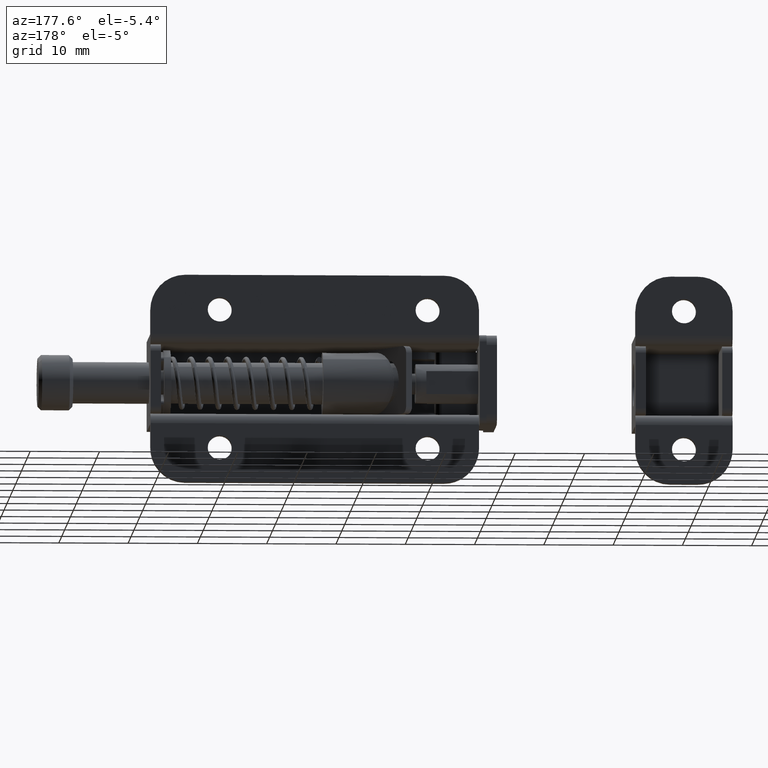
[diagram: clean part render]
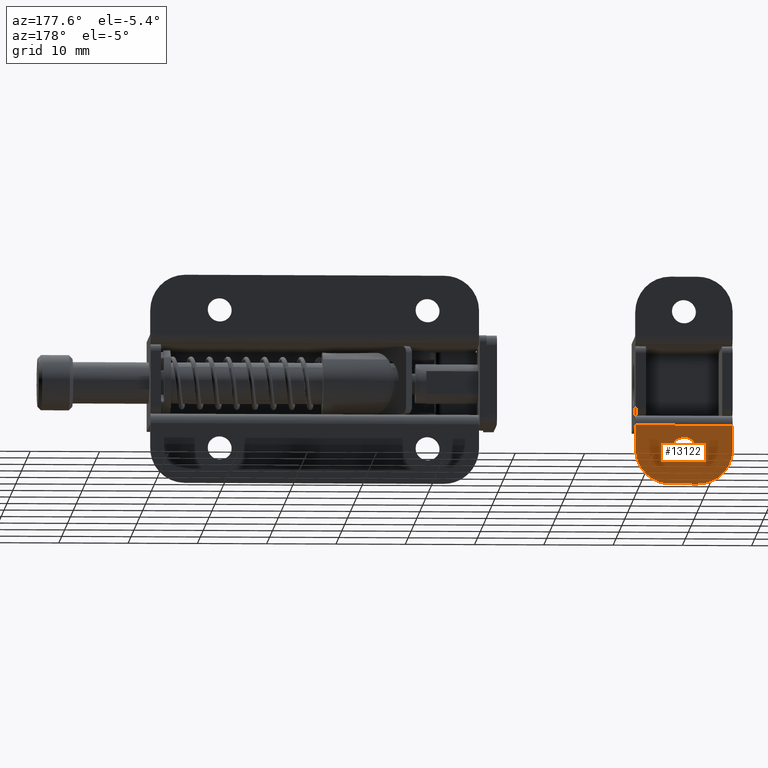
[diagram: same view with one face highlighted and labeled with its STEP entity id]
A machine part, auxiliary view. The second image highlights one B-rep face of the part: STEP entity #13122.
In plain terms, the highlighted face is a freeform B-spline surface patch.
Its self-contained STEP definition (entity closure, byte-faithful):
#11662=CARTESIAN_POINT('',(-5.663777417865256,7.500000000012889,-8.869951189053252));
#11663=VERTEX_POINT('',#11662);
#11664=CARTESIAN_POINT('',(-7.000000000000110,7.500000000000000,-8.250000000000000));
#11665=VERTEX_POINT('',#11664);
#11666=CARTESIAN_POINT('',(-5.663777417865256,7.500000000012889,-8.869951189053252));
#11667=CARTESIAN_POINT('',(-5.816989337607192,7.500000000011397,-8.688333685461457));
#11668=CARTESIAN_POINT('',(-6.135286674541159,7.500000000008390,-8.439280064663162));
#11669=CARTESIAN_POINT('',(-6.619894195133592,7.500000000003610,-8.275633645746352));
#11670=CARTESIAN_POINT('',(-6.889140766812093,7.500000000001148,-8.249997032942437));
#11671=CARTESIAN_POINT('',(-7.000000000000110,7.500000000000000,-8.250000000000000));
#11672=B_SPLINE_CURVE_WITH_KNOTS('',3,(#11666,#11667,#11668,#11669,#11670,#11671),.UNSPECIFIED.,.F.,.U.,(4,1,1,4),(0.000000017647756,0.712711155184843,1.187851294052991,1.520449607857930),.UNSPECIFIED.);
#11673=EDGE_CURVE('',#11663,#11665,#11672,.T.);
#11731=CARTESIAN_POINT('',(-5.795379667279902,7.499999999996518,-11.269404874679800));
#11732=VERTEX_POINT('',#11731);
#11738=CARTESIAN_POINT('',(-7.000000000000110,7.500000000000000,-11.750000000000000));
#11739=VERTEX_POINT('',#11738);
#11740=CARTESIAN_POINT('',(-7.000000000000110,7.500000000000000,-11.750000000000000));
#11741=CARTESIAN_POINT('',(-6.764676753580902,7.499999999999345,-11.750288102531870));
#11742=CARTESIAN_POINT('',(-6.322057903959310,7.499999999998013,-11.659222743912110));
#11743=CARTESIAN_POINT('',(-5.945877834073245,7.499999999996969,-11.412428215246690));
#11744=CARTESIAN_POINT('',(-5.795379667279902,7.499999999996518,-11.269404874679800));
#11745=B_SPLINE_CURVE_WITH_KNOTS('',3,(#11740,#11741,#11742,#11743,#11744),.UNSPECIFIED.,.F.,.U.,(4,1,4),(0.000000025853089,0.705846344476330,1.328662989266078),.UNSPECIFIED.);
#11746=EDGE_CURVE('',#11739,#11732,#11745,.T.);
#11748=CARTESIAN_POINT('',(-8.749999999999641,7.500000000000000,-10.000001279623550));
#11749=VERTEX_POINT('',#11748);
#11750=CARTESIAN_POINT('',(-8.749999999999641,7.500000000000000,-10.000001279623550));
#11751=CARTESIAN_POINT('',(-8.750015356569216,7.499999999999992,-10.143168365337569));
#11752=CARTESIAN_POINT('',(-8.709444797137438,7.500000000000016,-10.472490611525121));
#11753=CARTESIAN_POINT('',(-8.520926991041856,7.499999999999989,-10.912264563380710));
#11754=CARTESIAN_POINT('',(-8.200578451136030,7.500000000000008,-11.302545158916111));
#11755=CARTESIAN_POINT('',(-7.845621418242367,7.500000000000018,-11.552563452311951));
#11756=CARTESIAN_POINT('',(-7.429486579303960,7.499999999999971,-11.713011972321450));
#11757=CARTESIAN_POINT('',(-7.157492783635758,7.500000000000023,-11.750052691331620));
#11758=CARTESIAN_POINT('',(-7.000000000000110,7.500000000000000,-11.750000000000000));
#11759=B_SPLINE_CURVE_WITH_KNOTS('',3,(#11750,#11751,#11752,#11753,#11754,#11755,#11756,#11757,#11758),.UNSPECIFIED.,.F.,.U.,(4,1,1,1,1,1,4),(0.000000071699980,0.429525124177618,0.987919150024657,1.417425587328034,1.932859780036204,2.276484966880308,2.748961831352450),.UNSPECIFIED.);
#11760=EDGE_CURVE('',#11749,#11739,#11759,.T.);
#11762=CARTESIAN_POINT('',(-7.000000000000110,7.500000000000000,-8.250000000000000));
#11763=CARTESIAN_POINT('',(-7.171814868275876,7.500000000000009,-8.249917438629716));
#11764=CARTESIAN_POINT('',(-7.458105993765854,7.500000000000009,-8.292532095585878));
#11765=CARTESIAN_POINT('',(-7.843545293256585,7.499999999999981,-8.452200833079031));
#11766=CARTESIAN_POINT('',(-8.211877212530190,7.500000000000015,-8.704741813071740));
#11767=CARTESIAN_POINT('',(-8.479134392602296,7.500000000000001,-9.030422682462021));
#11768=CARTESIAN_POINT('',(-8.693941142183361,7.499999999999970,-9.484701665552601));
#11769=CARTESIAN_POINT('',(-8.750188850261178,7.500000000000014,-9.785209677847448));
#11770=CARTESIAN_POINT('',(-8.749999999999641,7.500000000000000,-10.000001279623550));
#11771=B_SPLINE_CURVE_WITH_KNOTS('',3,(#11762,#11763,#11764,#11765,#11766,#11767,#11768,#11769,#11770),.UNSPECIFIED.,.F.,.U.,(4,1,1,1,1,1,4),(0.000000069946655,0.515425765859263,0.859052004772346,1.245641174975888,1.846958785916326,2.104677139526735,2.748963273822413),.UNSPECIFIED.);
#11772=EDGE_CURVE('',#11665,#11749,#11771,.T.);
#11791=CARTESIAN_POINT('',(-5.250000000000577,7.500000000000000,-9.999998720376441));
#11792=VERTEX_POINT('',#11791);
#11793=CARTESIAN_POINT('',(-5.250000000000577,7.500000000000000,-9.999998720376441));
#11794=CARTESIAN_POINT('',(-5.249960197660214,7.500000000001602,-9.859228559586203));
#11795=CARTESIAN_POINT('',(-5.279507639331722,7.500000000004382,-9.616115240299182));
#11796=CARTESIAN_POINT('',(-5.412336439151173,7.500000000008813,-9.227085550351823));
#11797=CARTESIAN_POINT('',(-5.556288235830201,7.500000000011446,-8.996936489614338));
#11798=CARTESIAN_POINT('',(-5.663777417865256,7.500000000012889,-8.869951189053252));
#11799=B_SPLINE_CURVE_WITH_KNOTS('',3,(#11793,#11794,#11795,#11796,#11797,#11798),.UNSPECIFIED.,.F.,.U.,(4,1,1,4),(0.000000025064289,0.422302978117844,0.729421768475489,1.228514244483211),.UNSPECIFIED.);
#11800=EDGE_CURVE('',#11792,#11663,#11799,.T.);
#11802=CARTESIAN_POINT('',(-5.795379667279902,7.499999999996518,-11.269404874679800));
#11803=CARTESIAN_POINT('',(-5.655776038891304,7.499999999996884,-11.137086712710950));
#11804=CARTESIAN_POINT('',(-5.466187432288491,7.499999999997582,-10.885659152161541));
#11805=CARTESIAN_POINT('',(-5.289507664178270,7.499999999998766,-10.443801003905840));
#11806=CARTESIAN_POINT('',(-5.249939263667557,7.499999999999571,-10.162744239348561));
#11807=CARTESIAN_POINT('',(-5.250000000000577,7.500000000000000,-9.999998720376441));
#11808=B_SPLINE_CURVE_WITH_KNOTS('',3,(#11802,#11803,#11804,#11805,#11806,#11807),.UNSPECIFIED.,.F.,.U.,(4,1,1,4),(0.000000022452396,0.577003454274625,0.932066978212350,1.420300821287584),.UNSPECIFIED.);
#11809=EDGE_CURVE('',#11732,#11792,#11808,.T.);
#12812=CARTESIAN_POINT('',(-5.0,7.500000000000000,-15.0));
#12813=VERTEX_POINT('',#12812);
#12819=CARTESIAN_POINT('',(0.0,7.500000000000000,-10.0));
#12820=VERTEX_POINT('',#12819);
#12821=CARTESIAN_POINT('',(0.0,7.500000000000000,-10.0));
#12822=CARTESIAN_POINT('',(0.000019725555081,7.500000000000007,-10.286336390521090));
#12823=CARTESIAN_POINT('',(-0.054585989343212,7.499999999999987,-10.920386871379220));
#12824=CARTESIAN_POINT('',(-0.290038199160882,7.500000000000013,-11.751372896627830));
#12825=CARTESIAN_POINT('',(-0.680705119643790,7.500000000000005,-12.564405152733960));
#12826=CARTESIAN_POINT('',(-1.142225882063351,7.499999999999986,-13.219696652600261));
#12827=CARTESIAN_POINT('',(-1.751310388355569,7.500000000000008,-13.828758719312029));
#12828=CARTESIAN_POINT('',(-2.466698777499436,7.500000000000004,-14.345898778751121));
#12829=CARTESIAN_POINT('',(-3.193811646523010,7.499999999999971,-14.684343084424871));
#12830=CARTESIAN_POINT('',(-4.059196416687382,7.500000000000037,-14.935273264435830));
#12831=CARTESIAN_POINT('',(-4.611382681116209,7.499999999999899,-15.000096996504810));
#12832=CARTESIAN_POINT('',(-5.0,7.500000000000000,-15.0));
#12833=B_SPLINE_CURVE_WITH_KNOTS('',3,(#12821,#12822,#12823,#12824,#12825,#12826,#12827,#12828,#12829,#12830,#12831,#12832),.UNSPECIFIED.,.F.,.U.,(4,1,1,1,1,1,1,1,1,4),(0.000000063721979,0.859016491907204,1.902148073986560,2.577114731685155,3.558884099571298,4.295148433495450,5.154204394049296,6.197323130468217,6.688204231754556,7.854030914378162),.UNSPECIFIED.);
#12834=EDGE_CURVE('',#12820,#12813,#12833,.T.);
#12877=CARTESIAN_POINT('',(-14.0,7.500000000000000,-10.0));
#12878=VERTEX_POINT('',#12877);
#12884=CARTESIAN_POINT('',(-9.0,7.500000000000000,-15.0));
#12885=VERTEX_POINT('',#12884);
#12886=CARTESIAN_POINT('',(-9.0,7.500000000000000,-15.0));
#12887=CARTESIAN_POINT('',(-9.327250603561918,7.499999999999996,-15.000039622656420));
#12888=CARTESIAN_POINT('',(-9.899920506423921,7.500000000000008,-14.943568889785650));
#12889=CARTESIAN_POINT('',(-10.730086660924851,7.499999999999995,-14.713836419750120));
#12890=CARTESIAN_POINT('',(-11.439325125585100,7.500000000000002,-14.388981252368881));
#12891=CARTESIAN_POINT('',(-12.155520033445370,7.500000000000003,-13.910441110456270));
#12892=CARTESIAN_POINT('',(-12.780666069001679,7.499999999999971,-13.315257268541259));
#12893=CARTESIAN_POINT('',(-13.394064895585970,7.500000000000088,-12.466782998372061));
#12894=CARTESIAN_POINT('',(-13.872057409418160,7.499999999999862,-11.370279961169039));
#12895=CARTESIAN_POINT('',(-14.000166408808720,7.500000000000090,-10.470437462164959));
#12896=CARTESIAN_POINT('',(-14.0,7.500000000000000,-10.0));
#12897=B_SPLINE_CURVE_WITH_KNOTS('',3,(#12886,#12887,#12888,#12889,#12890,#12891,#12892,#12893,#12894,#12895,#12896),.UNSPECIFIED.,.F.,.U.,(4,1,1,1,1,1,1,1,4),(0.000000063718134,0.981750066920853,1.718069685101017,2.577114731682866,3.313441434120806,4.295148433493795,5.154204394047846,6.442761671479175,7.854030914378219),.UNSPECIFIED.);
#12898=EDGE_CURVE('',#12885,#12878,#12897,.T.);
#12934=CARTESIAN_POINT('',(0.0,7.500000000000000,-6.500000000000000));
#12935=VERTEX_POINT('',#12934);
#12936=CARTESIAN_POINT('',(0.0,7.500000000000000,-10.0));
#12937=CARTESIAN_POINT('',(0.0,7.500000000000000,-6.500000000000000));
#12938=QUASI_UNIFORM_CURVE('',1,(#12936,#12937),.UNSPECIFIED.,.F.,.U.);
#12939=EDGE_CURVE('',#12820,#12935,#12938,.T.);
#13071=CARTESIAN_POINT('',(-14.0,7.500000000000000,-6.500000000000000));
#13072=VERTEX_POINT('',#13071);
#13073=CARTESIAN_POINT('',(-14.0,7.500000000000000,-6.500000000000000));
#13074=CARTESIAN_POINT('',(0.0,7.500000000000000,-6.500000000000000));
#13075=QUASI_UNIFORM_CURVE('',1,(#13073,#13074),.UNSPECIFIED.,.F.,.U.);
#13076=EDGE_CURVE('',#13072,#12935,#13075,.T.);
#13093=CARTESIAN_POINT('',(-14.699299972865290,7.500000000000000,-15.424574983525350));
#13094=CARTESIAN_POINT('',(-14.699299972865290,7.500000000000000,-6.075424788486882));
#13095=CARTESIAN_POINT('',(0.699300348374546,7.500000000000000,-15.424574983525350));
#13096=CARTESIAN_POINT('',(0.699300348374546,7.500000000000000,-6.075424788486882));
#13097=B_SPLINE_SURFACE_WITH_KNOTS('',1,1,((#13093,#13095),(#13094,#13096)),.UNSPECIFIED.,.F.,.F.,.U.,(2,2),(2,2),(0.0,9.349150195038465),(0.0,15.398600321239829),.UNSPECIFIED.);
#13098=CARTESIAN_POINT('',(-9.0,7.500000000000000,-15.0));
#13099=CARTESIAN_POINT('',(-5.0,7.500000000000000,-15.0));
#13100=QUASI_UNIFORM_CURVE('',1,(#13098,#13099),.UNSPECIFIED.,.F.,.U.);
#13101=EDGE_CURVE('',#12885,#12813,#13100,.T.);
#13102=ORIENTED_EDGE('',*,*,#13101,.F.);
#13103=ORIENTED_EDGE('',*,*,#12898,.T.);
#13104=CARTESIAN_POINT('',(-14.0,7.500000000000000,-10.0));
#13105=CARTESIAN_POINT('',(-14.0,7.500000000000000,-6.500000000000000));
#13106=QUASI_UNIFORM_CURVE('',1,(#13104,#13105),.UNSPECIFIED.,.F.,.U.);
#13107=EDGE_CURVE('',#12878,#13072,#13106,.T.);
#13108=ORIENTED_EDGE('',*,*,#13107,.T.);
#13109=ORIENTED_EDGE('',*,*,#13076,.T.);
#13110=ORIENTED_EDGE('',*,*,#12939,.F.);
#13111=ORIENTED_EDGE('',*,*,#12834,.T.);
#13112=EDGE_LOOP('',(#13102,#13103,#13108,#13109,#13110,#13111));
#13113=FACE_OUTER_BOUND('',#13112,.T.);
#13114=ORIENTED_EDGE('',*,*,#11772,.T.);
#13115=ORIENTED_EDGE('',*,*,#11760,.T.);
#13116=ORIENTED_EDGE('',*,*,#11746,.T.);
#13117=ORIENTED_EDGE('',*,*,#11809,.T.);
#13118=ORIENTED_EDGE('',*,*,#11800,.T.);
#13119=ORIENTED_EDGE('',*,*,#11673,.T.);
#13120=EDGE_LOOP('',(#13114,#13115,#13116,#13117,#13118,#13119));
#13121=FACE_BOUND('',#13120,.T.);
#13122=ADVANCED_FACE('',(#13113,#13121),#13097,.T.);